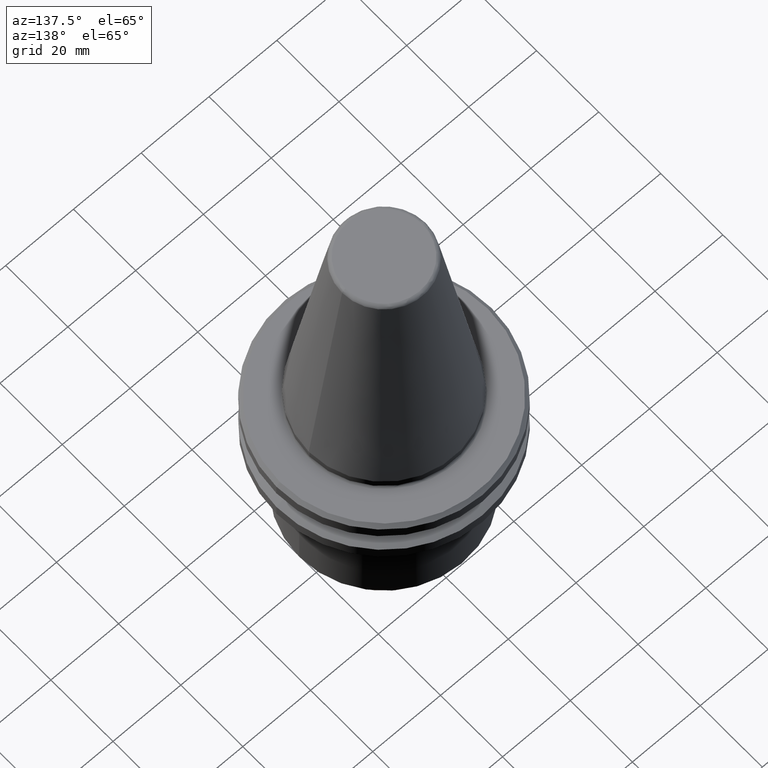
[diagram: clean part render]
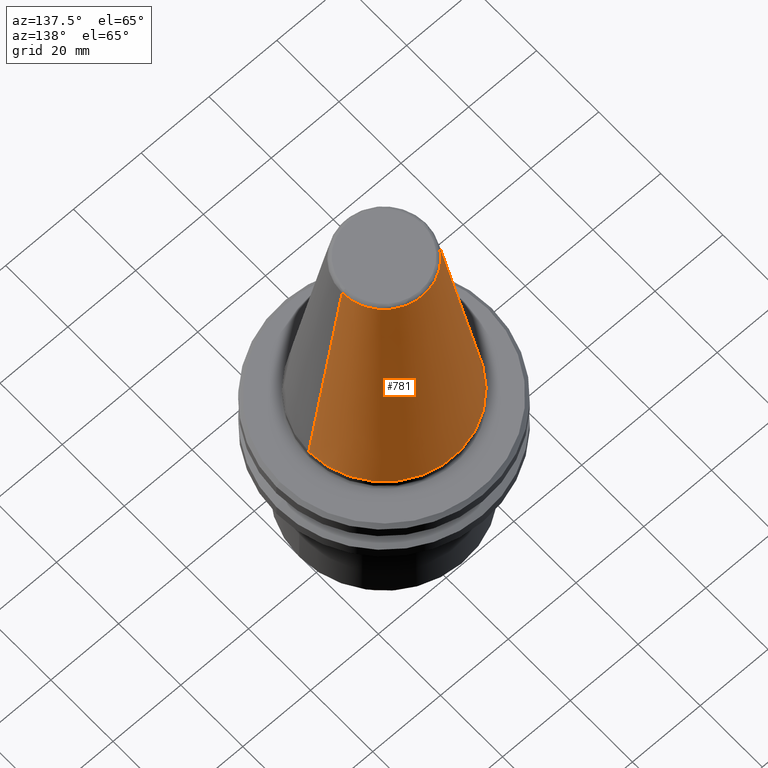
[diagram: same view with one face highlighted and labeled with its STEP entity id]
A machine part, auxiliary view. The second image highlights one B-rep face of the part: STEP entity #781.
In plain terms, the highlighted conical surface has half-angle 8.297 deg.
Its self-contained STEP definition (entity closure, byte-faithful):
#35 = DIRECTION ( 'NONE',  ( 0.1443082272673070500, 1.767266086135363700E-017, -0.9895327864921743500 ) ) ;
#43 = CARTESIAN_POINT ( 'NONE',  ( 22.22500000000000100, 2.721777511104992800E-015, 0.0000000000000000000 ) ) ;
#73 = CARTESIAN_POINT ( 'NONE',  ( 12.37469537611110800, 2.118620309691396900E-015, 67.54430822726729400 ) ) ;
#76 = CARTESIAN_POINT ( 'NONE',  ( 0.0000000000000000000, 0.0000000000000000000, 67.54430822726729400 ) ) ;
#125 = VECTOR ( 'NONE', #35, 1000.000000000000000 ) ;
#141 = VERTEX_POINT ( 'NONE', #673 ) ;
#161 = DIRECTION ( 'NONE',  ( 0.0000000000000000000, 0.0000000000000000000, -1.000000000000000000 ) ) ;
#168 = CONICAL_SURFACE ( 'NONE', #187, 22.22500000000000100, 0.1448138465474190500 ) ;
#187 = AXIS2_PLACEMENT_3D ( 'NONE', #1372, #161, #305 ) ;
#250 = ORIENTED_EDGE ( 'NONE', *, *, #767, .T. ) ;
#299 = ORIENTED_EDGE ( 'NONE', *, *, #380, .F. ) ;
#305 = DIRECTION ( 'NONE',  ( -1.000000000000000000, 0.0000000000000000000, 0.0000000000000000000 ) ) ;
#380 = EDGE_CURVE ( 'NONE', #520, #141, #744, .T. ) ;
#445 = CARTESIAN_POINT ( 'NONE',  ( 0.0000000000000000000, 0.0000000000000000000, 0.0000000000000000000 ) ) ;
#467 = CARTESIAN_POINT ( 'NONE',  ( 22.22500000000000500, 0.0000000000000000000, 0.0000000000000000000 ) ) ;
#474 = CIRCLE ( 'NONE', #1468, 12.37469537611110800 ) ;
#499 = AXIS2_PLACEMENT_3D ( 'NONE', #445, #1253, #569 ) ;
#520 = VERTEX_POINT ( 'NONE', #764 ) ;
#563 = ORIENTED_EDGE ( 'NONE', *, *, #1415, .T. ) ;
#569 = DIRECTION ( 'NONE',  ( -1.000000000000000000, 0.0000000000000000000, 6.244223985518314900E-016 ) ) ;
#586 = VERTEX_POINT ( 'NONE', #467 ) ;
#617 = ORIENTED_EDGE ( 'NONE', *, *, #1112, .T. ) ;
#627 = DIRECTION ( 'NONE',  ( 0.0000000000000000000, 0.0000000000000000000, -1.000000000000000000 ) ) ;
#673 = CARTESIAN_POINT ( 'NONE',  ( -22.22500000000000500, 2.721777511104993200E-015, 0.0000000000000000000 ) ) ;
#713 = FACE_OUTER_BOUND ( 'NONE', #1295, .T. ) ;
#736 = VERTEX_POINT ( 'NONE', #73 ) ;
#744 = LINE ( 'NONE', #984, #1052 ) ;
#764 = CARTESIAN_POINT ( 'NONE',  ( -12.37469537611110800, 0.0000000000000000000, 67.54430822726729400 ) ) ;
#767 = EDGE_CURVE ( 'NONE', #520, #736, #474, .T. ) ;
#781 = ADVANCED_FACE ( 'NONE', ( #713 ), #168, .T. ) ;
#984 = CARTESIAN_POINT ( 'NONE',  ( -22.22500000000000100, 0.0000000000000000000, 0.0000000000000000000 ) ) ;
#1052 = VECTOR ( 'NONE', #1530, 1000.000000000000000 ) ;
#1112 = EDGE_CURVE ( 'NONE', #736, #586, #1245, .T. ) ;
#1245 = LINE ( 'NONE', #43, #125 ) ;
#1253 = DIRECTION ( 'NONE',  ( -0.0000000000000000000, -0.0000000000000000000, 1.000000000000000000 ) ) ;
#1295 = EDGE_LOOP ( 'NONE', ( #250, #617, #563, #299 ) ) ;
#1364 = DIRECTION ( 'NONE',  ( -1.000000000000000000, 0.0000000000000000000, 0.0000000000000000000 ) ) ;
#1372 = CARTESIAN_POINT ( 'NONE',  ( 0.0000000000000000000, 0.0000000000000000000, 0.0000000000000000000 ) ) ;
#1398 = CIRCLE ( 'NONE', #499, 22.22500000000000100 ) ;
#1415 = EDGE_CURVE ( 'NONE', #586, #141, #1398, .T. ) ;
#1468 = AXIS2_PLACEMENT_3D ( 'NONE', #76, #627, #1364 ) ;
#1530 = DIRECTION ( 'NONE',  ( -0.1443082272673070500, 0.0000000000000000000, -0.9895327864921743500 ) ) ;